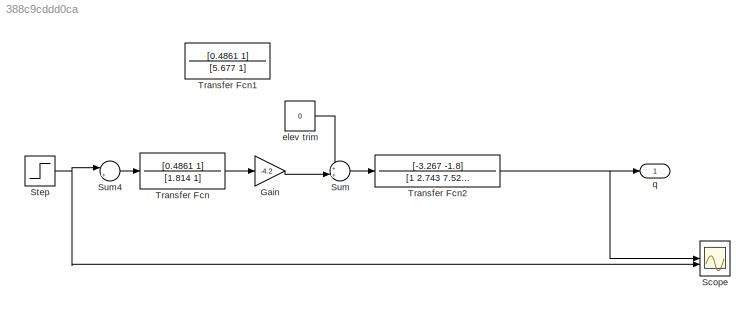
MODEL slx_388c9cddd0ca
KIND model
CONFIG AbsTol = auto
CONFIG EnableMultiTasking = off
CONFIG FixedStep = auto
CONFIG MaxStep = auto
CONFIG MinStep = auto
CONFIG RelTol = 1e-3
CONFIG SampleTimeConstraint = Unconstrained
CONFIG SolverName = VariableStepAuto
CONFIG StartTime = 0.0
CONFIG StopTime = 20
BLOCK [Gain] Gain
  Gain = -4.2
BLOCK [Scope] Scope
  Floating = off
  NumInputPorts = 2
  ScopeSpecificationString = Simulink.scopes.TimeScopeBlockCfg('CurrentConfiguration', extmgr.ConfigurationSet(extmgr.Configuration('Core','General UI',true),extmgr.Configuration('Core','Source UI',true),extmgr.Configuration('Sources','WiredSimulink',true,'DataLoggingVariableName','ScopeData1'),extmgr.Configuration('Visuals','Time Domain',true,'SerializedDisplays',{struct('MinYLimReal','-0.20185','MaxYLimReal','1.81669','YLab...<+1479ch>
BLOCK [Step] Step
  SampleTime = 0
  Time = 5
BLOCK [Sum] Sum
  Inputs = ++|
BLOCK [Sum] Sum4
  Inputs = |+-
BLOCK [TransferFcn] Transfer Fcn
  Denominator = [1.814 1]
  Numerator = [0.4861 1]
BLOCK [TransferFcn] Transfer Fcn1
  Commented = on
  Denominator = [5.677 1]
  Numerator = [0.4861 1]
BLOCK [TransferFcn] Transfer Fcn2
  Denominator = [1 2.743 7.525]
  Numerator = [-3.267 -1.8]
BLOCK [Constant] elev trim
  Value = 0
BLOCK [Outport] q
LINE Gain:1 -> Sum:2
NET Step:1 -> Scope:2, Sum4:1
LINE Sum4:1 -> Transfer Fcn:1
LINE Sum:1 -> Transfer Fcn2:1
NET Transfer Fcn2:1 -> Scope:1, q:1
LINE Transfer Fcn:1 -> Gain:1
LINE elev trim:1 -> Sum:1
note: NET lines group one-source signal fan-out (src -> all destinations, sorted); 1:1 wires keep LINE
